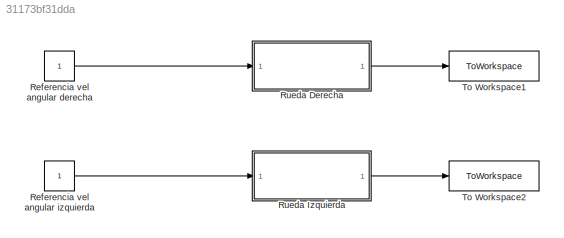
MODEL slx_31173bf31dda
KIND model
CONFIG AbsTol = auto
CONFIG EnableMultiTasking = off
CONFIG FixedStep = 0.05
CONFIG MaxStep = auto
CONFIG MinStep = auto
CONFIG RelTol = 1e-3
CONFIG SampleTimeConstraint = Unconstrained
CONFIG SolverName = ode4
CONFIG StartTime = 0.0
CONFIG StopTime = 30.0
BLOCK [Constant] Referencia vel angular derecha
BLOCK [Constant] Referencia vel angular izquierda
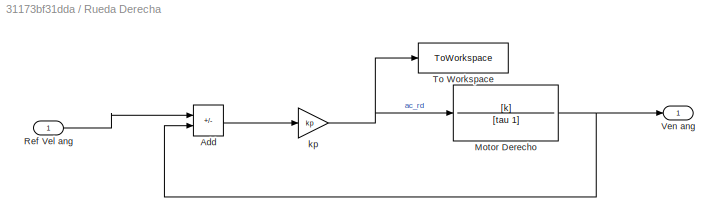
BLOCK [SubSystem] Rueda Derecha
  Ports = [1, 1]
  RequestExecContextInheritance = off
BLOCK [Sum] Rueda Derecha/Add
  IconShape = rectangular
  Inputs = +-
  Ports = [2, 1]
BLOCK [TransferFcn] Rueda Derecha/Motor Derecho
  Denominator = [tau 1]
  Numerator = [k]
BLOCK [Inport] Rueda Derecha/Ref Vel ang
BLOCK [ToWorkspace] Rueda Derecha/To Workspace
  FixptAsFi = on
  MaxDataPoints = inf
  Ports = [1]
  SampleTime = -1
  SaveFormat = Timeseries
  VariableName = ac_rd1
BLOCK [Outport] Rueda Derecha/Ven ang
BLOCK [Gain] Rueda Derecha/kp
  Gain = kp
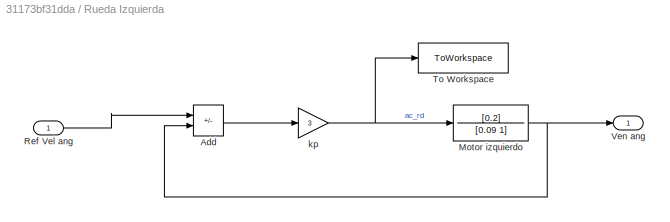
BLOCK [SubSystem] Rueda Izquierda
  Ports = [1, 1]
  RequestExecContextInheritance = off
BLOCK [Sum] Rueda Izquierda/Add
  IconShape = rectangular
  Inputs = +-
  Ports = [2, 1]
BLOCK [TransferFcn] Rueda Izquierda/Motor izquierdo
  Denominator = [0.09 1]
  Numerator = [0.2]
BLOCK [Inport] Rueda Izquierda/Ref Vel ang
BLOCK [ToWorkspace] Rueda Izquierda/To Workspace
  FixptAsFi = on
  MaxDataPoints = inf
  Ports = [1]
  SampleTime = -1
  SaveFormat = Timeseries
  VariableName = ac_rd2
BLOCK [Outport] Rueda Izquierda/Ven ang
BLOCK [Gain] Rueda Izquierda/kp
  Gain = 3
BLOCK [ToWorkspace] To Workspace1
  FixptAsFi = on
  MaxDataPoints = inf
  Ports = [1]
  SampleTime = -1
  SaveFormat = Timeseries
  VariableName = vel_angular_dcha
BLOCK [ToWorkspace] To Workspace2
  FixptAsFi = on
  MaxDataPoints = inf
  Ports = [1]
  SampleTime = -1
  SaveFormat = Timeseries
  VariableName = vel_angular_izqda
LINE Referencia vel angular derecha:1 -> Rueda Derecha:1
LINE Referencia vel angular izquierda:1 -> Rueda Izquierda:1
LINE Rueda Derecha/Add:1 -> Rueda Derecha/kp:1
NET Rueda Derecha/Motor Derecho:1 -> Rueda Derecha/Add:2, Rueda Derecha/Ven ang:1
LINE Rueda Derecha/Ref Vel ang:1 -> Rueda Derecha/Add:1
NET Rueda Derecha/kp:1 -> Rueda Derecha/Motor Derecho:1, Rueda Derecha/To Workspace:1
LINE Rueda Derecha:1 -> To Workspace1:1
LINE Rueda Izquierda/Add:1 -> Rueda Izquierda/kp:1
NET Rueda Izquierda/Motor izquierdo:1 -> Rueda Izquierda/Add:2, Rueda Izquierda/Ven ang:1
LINE Rueda Izquierda/Ref Vel ang:1 -> Rueda Izquierda/Add:1
NET Rueda Izquierda/kp:1 -> Rueda Izquierda/Motor izquierdo:1, Rueda Izquierda/To Workspace:1
LINE Rueda Izquierda:1 -> To Workspace2:1
note: NET lines group one-source signal fan-out (src -> all destinations, sorted); 1:1 wires keep LINE
